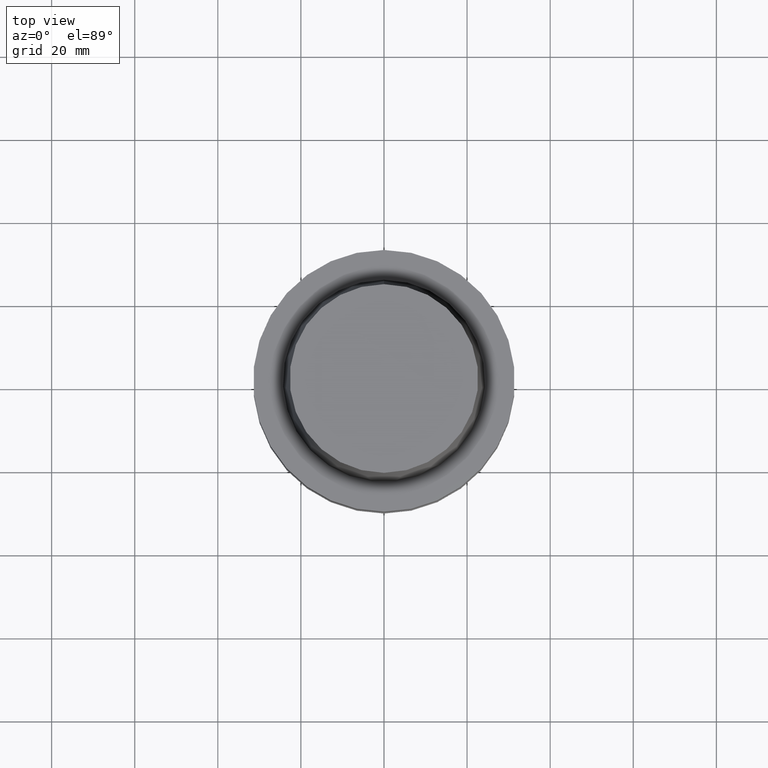
[diagram: clean part render]
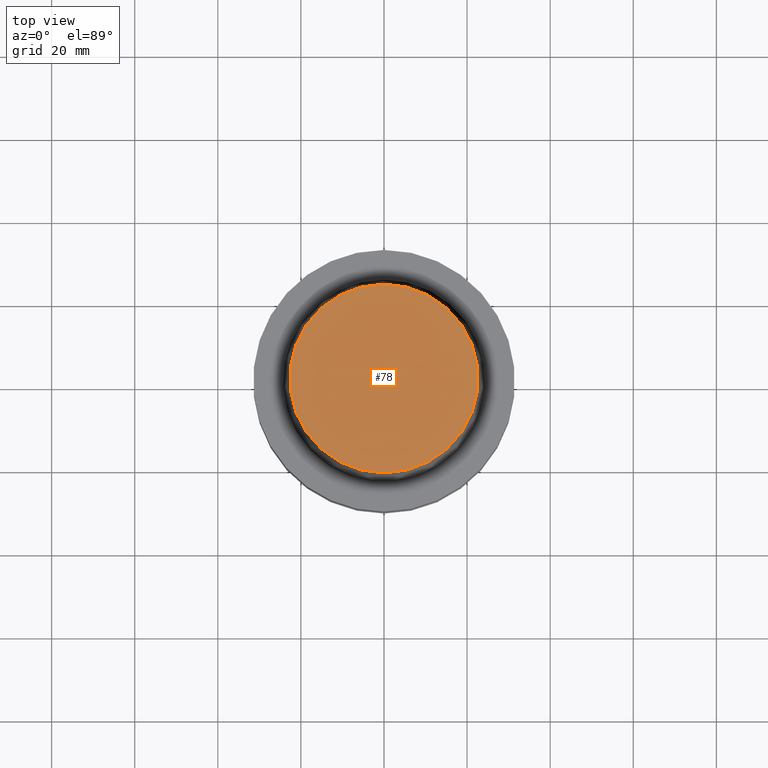
[diagram: same view with one face highlighted and labeled with its STEP entity id]
A machine part, top view. The second image highlights one B-rep face of the part: STEP entity #78.
In plain terms, the highlighted planar face has unit normal (-0, -0, 1).
Its self-contained STEP definition (entity closure, byte-faithful):
#78=ADVANCED_FACE('',(#101),#102,.T.);
#101=FACE_OUTER_BOUND('',#150,.T.);
#102=PLANE('',#151);
#150=EDGE_LOOP('',(#205));
#151=AXIS2_PLACEMENT_3D('',#206,#207,#208);
#205=ORIENTED_EDGE('',*,*,#277,.F.);
#206=CARTESIAN_POINT('',(-1.95943487863577E-015,11.3574999984407,32.0));
#207=DIRECTION('',(-6.12323399573677E-017,-1.22464679914735E-016,1.0));
#208=DIRECTION('',(1.23259516440783E-032,-1.0,-1.22464679914735E-016));
#277=EDGE_CURVE('',#296,#296,#297,.T.);
#296=VERTEX_POINT('',#328);
#297=CIRCLE('',#329,22.7149999968815);
#328=CARTESIAN_POINT('',(-1.95943487863577E-015,22.7149999968815,32.0));
#329=AXIS2_PLACEMENT_3D('',#363,#364,#365);
#363=CARTESIAN_POINT('',(-1.95943487863577E-015,-3.91886975727153E-015,32.0));
#364=DIRECTION('',(6.12323399573677E-017,1.22464679914735E-016,-1.0));
#365=DIRECTION('',(-1.23259516440783E-032,1.0,1.22464679914735E-016));